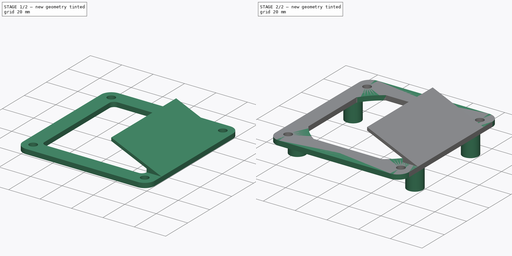
[diagram: build sequence overview — one tinted view per stage of 2, left to right]
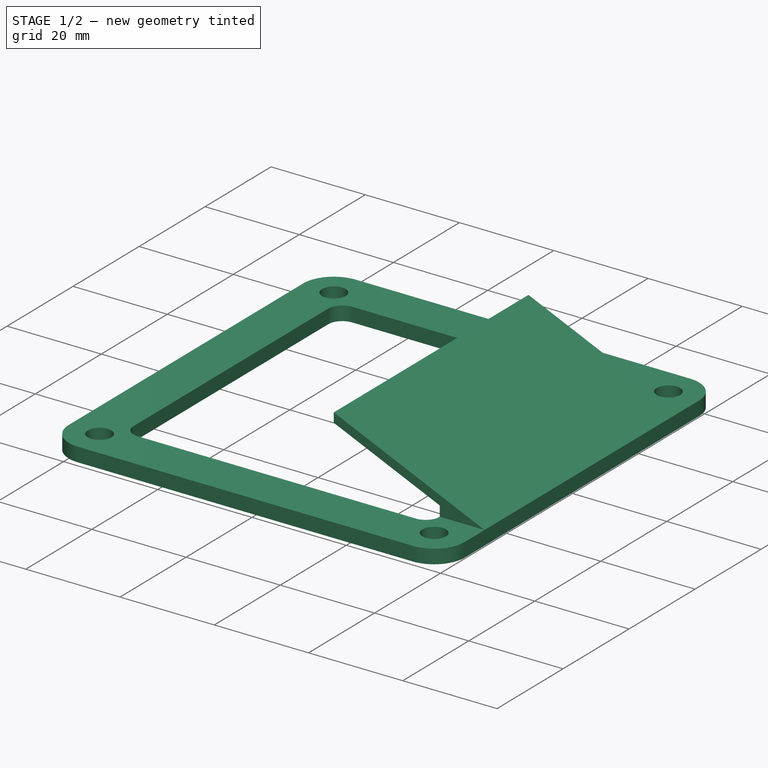
[diagram: stage 1 of 2 — iso view after this stage's code; geometry added in this stage tinted green]
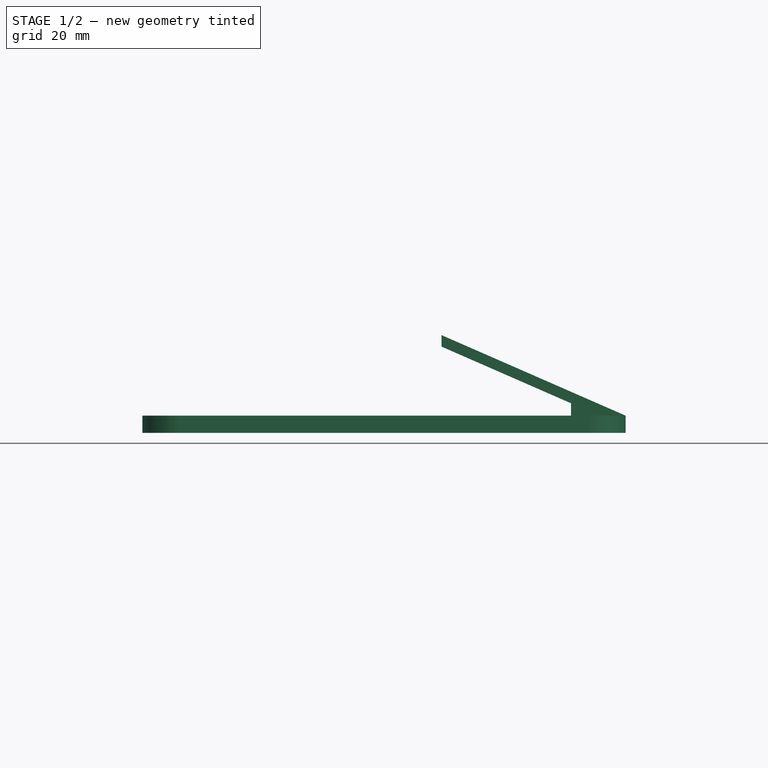
[diagram: stage 1 of 2 — front view after this stage's code; geometry added in this stage tinted green]
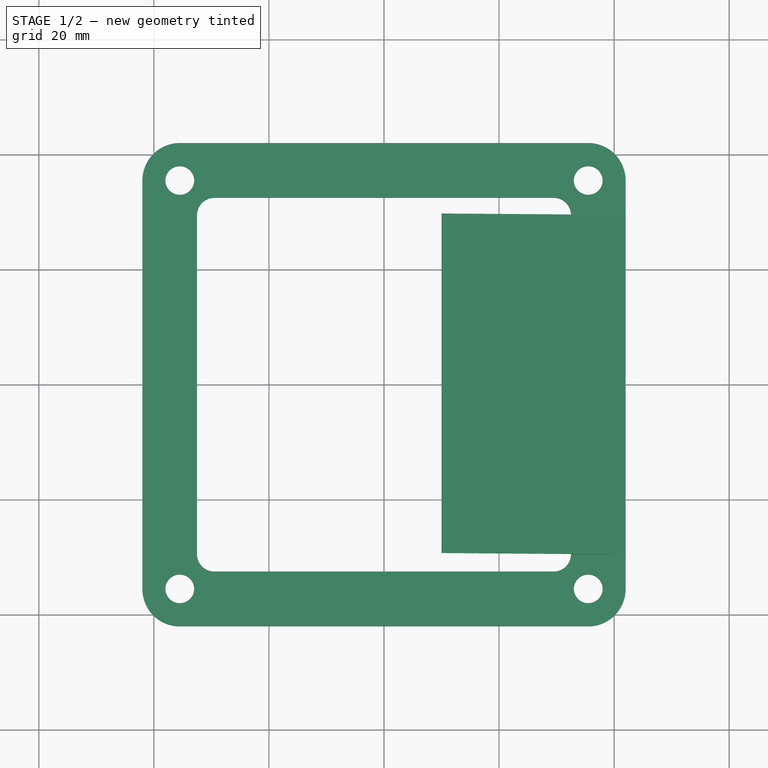
[diagram: stage 1 of 2 — top view after this stage's code; geometry added in this stage tinted green]
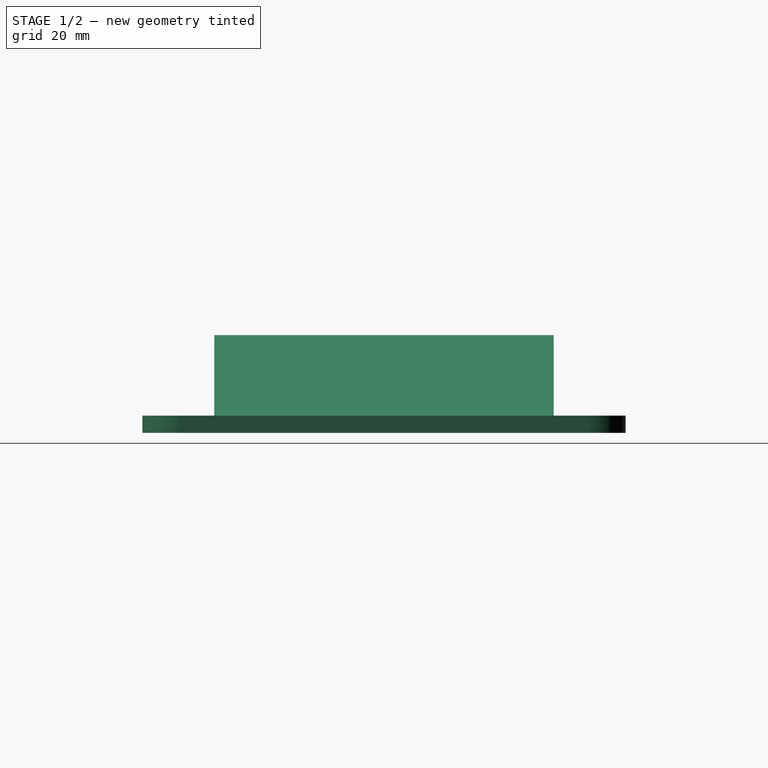
[diagram: stage 1 of 2 — right view after this stage's code; geometry added in this stage tinted green]
FCSTD DOCUMENT  (FreeCAD 1.0R39109 (Git))
Label: Fan8
License: All rights reserved
LicenseURL: http://en.wikipedia.org/wiki/All_rights_reserved
objects: Sketcher::SketchObject×4, PartDesign::Pad×4, PartDesign::Body×2
note: 22 computed .brp shape members not serialized (recipe doc carries the construction recipe); baked Part::Feature solids carry a one-line shape summary decoded from their .brp

FEATURE [PartDesign::Body] Body
  AllowCompound = false
  Group = -> [Sketch,Pad,Sketch001,Pad001]
  Origin = -> Origin
  Tip = -> Pad001
FEATURE [Sketcher::SketchObject] Sketch002
  ArcFitTolerance = 1e-06
  AttachmentSupport = -> [XZ_Plane001]
  FullyConstrained = true
  MakeInternals = false
  MapMode = 5
  Placement = pos=(0,0,0) rot=(1,0,0;1.5708rad)
  sketch-geometry (5):
    g0: LineSegment StartX=10 StartY=17 StartZ=0 EndX=42 EndY=3 EndZ=0
    g1: LineSegment StartX=10 StartY=15 StartZ=0 EndX=32.5 EndY=5.15625 EndZ=0
    g2: LineSegment StartX=10 StartY=17 StartZ=0 EndX=10 EndY=15 EndZ=0
    g3: LineSegment StartX=32.5 StartY=3 StartZ=0 EndX=42 EndY=3 EndZ=0
    g4: LineSegment StartX=32.5 StartY=5.15625 StartZ=0 EndX=32.5 EndY=3 EndZ=0
  constraints (15):
    c: Parallel(g0,g1)
    c: DistanceY(g1,g0) = 2
    c: DistanceY(g-1,g0) = 3
    c: DistanceY(g-1,g0) = 17
    c: DistanceX(g-1,g0) = 42
    c: Coincident(g2,g0)
    c: Coincident(g2,g1)
    c: Vertical(g2)
    c: Coincident(g3,g0)
    c: Horizontal(g3)
    c: Coincident(g4,g1)
    c: Vertical(g4)
    c: Coincident(g3,g4)
    c: DistanceX(g3,g3) = 9.5
    c: DistanceX(g0,g0) = 32
FEATURE [Sketcher::SketchObject] Sketch003
  ArcFitTolerance = 1e-06
  AttachmentSupport = -> [XY_Plane001]
  FullyConstrained = true
  MakeInternals = false
  MapMode = 5
  sketch-geometry (26):
    g0: LineSegment [constr] StartX=-35.5 StartY=35.5 StartZ=0 EndX=-35.5 EndY=-35.5 EndZ=0
    g1: LineSegment [constr] StartX=-35.5 StartY=-35.5 StartZ=0 EndX=35.5 EndY=-35.5 EndZ=0
    g2: LineSegment [constr] StartX=35.5 StartY=-35.5 StartZ=0 EndX=35.5 EndY=35.5 EndZ=0
    g3: LineSegment [constr] StartX=35.5 StartY=35.5 StartZ=0 EndX=-35.5 EndY=35.5 EndZ=0
    g4: Circle CenterX=-35.5 CenterY=35.5 CenterZ=0 NormalX=0 NormalY=0 NormalZ=1 AngleXU=0 Radius=2.5
    g5: Circle CenterX=35.5 CenterY=35.5 CenterZ=0 NormalX=0 NormalY=0 NormalZ=1 AngleXU=0 Radius=2.5
    g6: Circle CenterX=35.5 CenterY=-35.5 CenterZ=0 NormalX=0 NormalY=0 NormalZ=1 AngleXU=0 Radius=2.5
    g7: Circle CenterX=-35.5 CenterY=-35.5 CenterZ=0 NormalX=0 NormalY=0 NormalZ=1 AngleXU=0 Radius=2.5
    g8: LineSegment StartX=-42 StartY=35.5 StartZ=0 EndX=-42 EndY=-35.5 EndZ=0
    g9: LineSegment StartX=-35.5 StartY=-42 StartZ=0 EndX=35.5 EndY=-42 EndZ=0
    g10: LineSegment StartX=42 StartY=-35.5 StartZ=0 EndX=42 EndY=35.5 EndZ=0
    g11: LineSegment StartX=35.5 StartY=42 StartZ=0 EndX=-35.5 EndY=42 EndZ=0
    g12: ArcOfCircle CenterX=-35.5 CenterY=35.5 CenterZ=0 NormalX=0 NormalY=0 NormalZ=1 AngleXU=0 Radius=6.5 StartAngle=1.5708 EndAngle=3.14159
    g13: ArcOfCircle CenterX=35.5 CenterY=35.5 CenterZ=0 NormalX=0 NormalY=0 NormalZ=1 AngleXU=0 Radius=6.5 StartAngle=5e-16 EndAngle=1.5708
    g14: ArcOfCircle CenterX=35.5 CenterY=-35.5 CenterZ=0 NormalX=0 NormalY=0 NormalZ=1 AngleXU=0 Radius=6.5 StartAngle=4.71239 EndAngle=6.28319
    g15: ArcOfCircle CenterX=-35.5 CenterY=-35.5 CenterZ=0 NormalX=0 NormalY=0 NormalZ=1 AngleXU=0 Radius=6.5 StartAngle=3.14159 EndAngle=4.71239
    g16: LineSegment StartX=-32.5 StartY=29.5 StartZ=0 EndX=-32.5 EndY=-29.5 EndZ=0
    g17: LineSegment StartX=-29.5 StartY=-32.5 StartZ=0 EndX=29.5 EndY=-32.5 EndZ=0
    g18: LineSegment StartX=32.5 StartY=-29.5 StartZ=0 EndX=32.5 EndY=29.5 EndZ=0
    g19: LineSegment StartX=29.5 StartY=32.5 StartZ=0 EndX=-29.5 EndY=32.5 EndZ=0
    g20: ArcOfCircle CenterX=-29.5 CenterY=29.5 CenterZ=0 NormalX=0 NormalY=0 NormalZ=1 AngleXU=0 Radius=3 StartAngle=1.5708 EndAngle=3.14159
    g21: ArcOfCircle CenterX=-29.5 CenterY=-29.5 CenterZ=0 NormalX=0 NormalY=0 NormalZ=1 AngleXU=0 Radius=3 StartAngle=3.14159 EndAngle=4.71239
    g22: ArcOfCircle CenterX=29.5 CenterY=-29.5 CenterZ=0 NormalX=0 NormalY=0 NormalZ=1 AngleXU=0 Radius=3 StartAngle=4.71239 EndAngle=6.28319
    g23: ArcOfCircle CenterX=29.5 CenterY=29.5 CenterZ=0 NormalX=0 NormalY=0 NormalZ=1 AngleXU=0 Radius=3 StartAngle=7.69e-14 EndAngle=1.5708
    g24: GeomPoint [constr] X=-32.5 Y=32.5 Z=0
    g25: GeomPoint [constr] X=32.5 Y=-32.5 Z=0
  constraints (60):
    c: Coincident(g0,g1)
    c: Coincident(g1,g2)
    c: Coincident(g2,g3)
    c: Coincident(g3,g0)
    c: Vertical(g0)
    c: Vertical(g2)
    c: Horizontal(g1)
    c: Horizontal(g3)
    c: DistanceX(g3,g3) = 71
    c: DistanceY(g2,g2) = 71
    c: Symmetric(g2,g0,g-1)
    c: Coincident(g4,g0)
    c: Coincident(g5,g2)
    c: Coincident(g6,g1)
    c: Coincident(g7,g0)
    c: Equal(g7,g4)
    c: Equal(g4,g5)
    c: Equal(g5,g6)
    c: Radius(g5) = 2.5
    c: Vertical(g8)
    c: Vertical(g10)
    c: Horizontal(g9)
    c: Horizontal(g11)
    c: Coincident(g12,g0)
    c: Coincident(g13,g2)
    c: Coincident(g14,g1)
    c: Coincident(g15,g0)
    c: Tangent(g13,g11) = -1.5708
    c: Tangent(g13,g10) = -1.5708
    c: Tangent(g14,g10) = -1.5708
    c: Tangent(g12,g11) = -1.5708
    c: Tangent(g12,g8) = -1.5708
    c: Tangent(g14,g9) = -1.5708
    c: Tangent(g15,g9) = -1.5708
    c: Radius(g13) = 6.5
    c: Coincident(g8,g15)
    c: Tangent(g16,g20) = -1.5708
    c: Tangent(g16,g21) = -1.5708
    c: Tangent(g17,g21) = -1.5708
    c: Tangent(g17,g22) = -1.5708
    c: Tangent(g18,g22) = -1.5708
    c: Tangent(g18,g23) = -1.5708
    c: Tangent(g19,g23) = -1.5708
    c: Tangent(g19,g20) = -1.5708
    c: Vertical(g16)
    c: Vertical(g18)
    c: Horizontal(g17)
    c: Horizontal(g19)
    c: Equal(g20,g21)
    c: Equal(g21,g22)
    c: Equal(g22,g23)
    c: PointOnObject(g24,g16)
    c: PointOnObject(g24,g19)
    c: PointOnObject(g25,g17)
    c: PointOnObject(g25,g18)
    c: DistanceY(g19,g2) = 3
    c: DistanceY(g1,g17) = 3
    c: DistanceX(g18,g2) = 3
    c: DistanceX(g0,g16) = 3
    c: Radius(g23) = 3
FEATURE [PartDesign::Pad] Pad002
  Direction = (0,0,1)
  Length = 3
  Length2 = 10
  Profile = -> Sketch003
  ReferenceAxis = -> Sketch003 [N_Axis]
  Suppressed = false
  Type = 0
FEATURE [PartDesign::Pad] Pad003
  BaseFeature = -> Pad002
  Direction = (0,-1,2e-16)
  Length = 59
  Length2 = 10
  Midplane = true
  Profile = -> Sketch002
  ReferenceAxis = -> Sketch002 [N_Axis]
  Suppressed = false
  Type = 0
FEATURE [PartDesign::Body] Body001  label="Vent"
  AllowCompound = false
  Group = -> [Sketch002,Sketch003,Pad002,Pad003]
  Origin = -> Origin001
  Placement = pos=(0,0,3) rot=(0,0,1;0rad)
  Tip = -> Pad003
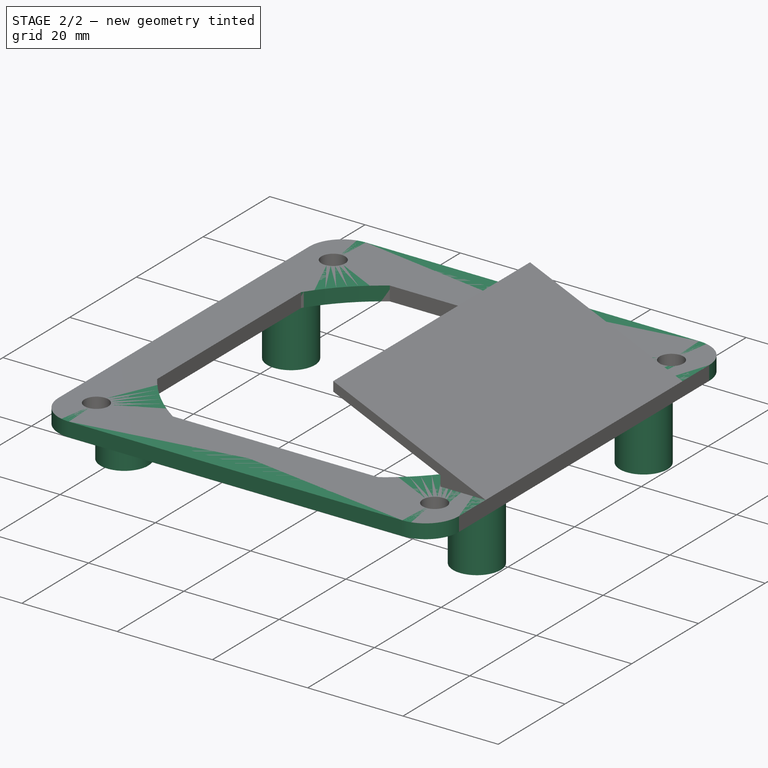
[diagram: stage 2 of 2 — iso view after this stage's code; geometry added in this stage tinted green]
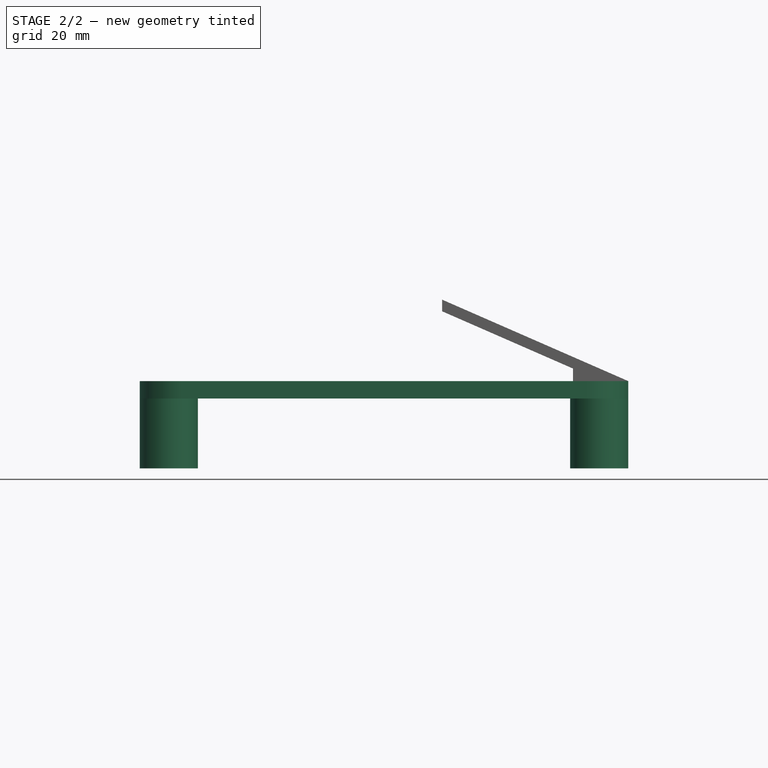
[diagram: stage 2 of 2 — front view after this stage's code; geometry added in this stage tinted green]
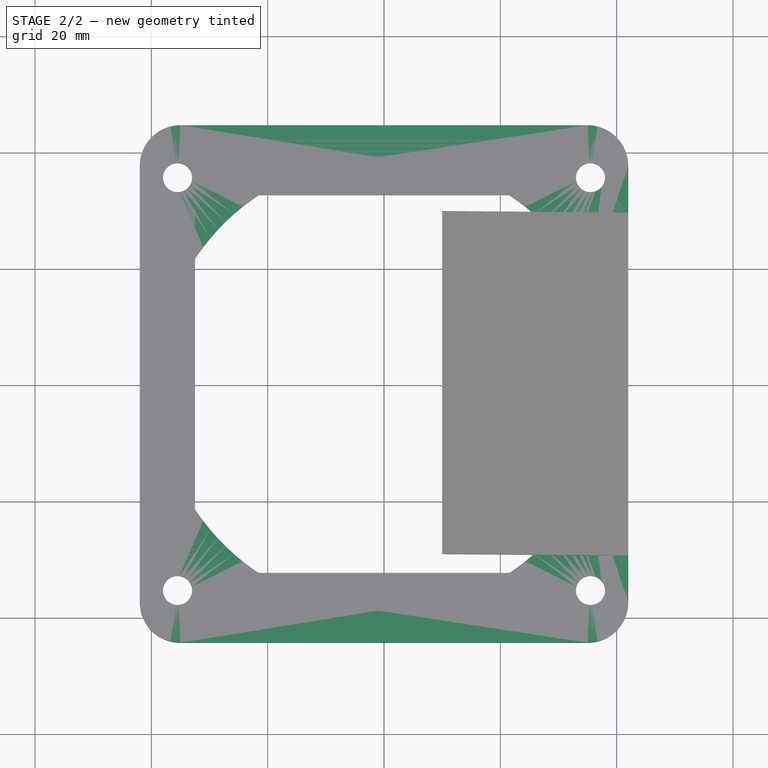
[diagram: stage 2 of 2 — top view after this stage's code; geometry added in this stage tinted green]
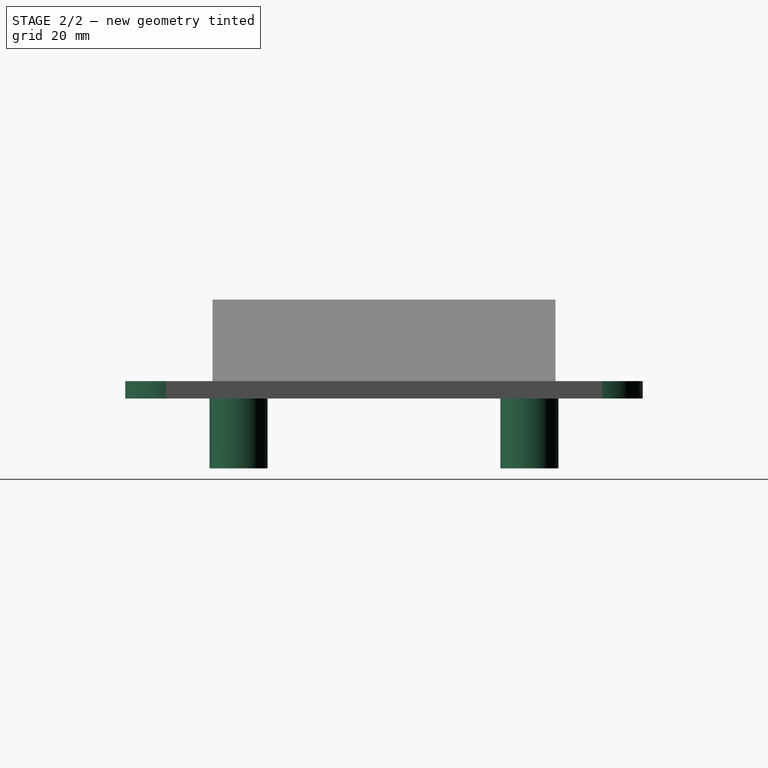
[diagram: stage 2 of 2 — right view after this stage's code; geometry added in this stage tinted green]
FEATURE [Sketcher::SketchObject] Sketch
  ArcFitTolerance = 1e-06
  AttachmentSupport = -> [XY_Plane]
  FullyConstrained = true
  MakeInternals = false
  MapMode = 5
  sketch-geometry (21):
    g0: LineSegment [constr] StartX=-35.5 StartY=35.5 StartZ=0 EndX=-35.5 EndY=-35.5 EndZ=0
    g1: LineSegment [constr] StartX=-35.5 StartY=-35.5 StartZ=0 EndX=35.5 EndY=-35.5 EndZ=0
    g2: LineSegment [constr] StartX=35.5 StartY=-35.5 StartZ=0 EndX=35.5 EndY=35.5 EndZ=0
    g3: LineSegment [constr] StartX=35.5 StartY=35.5 StartZ=0 EndX=-35.5 EndY=35.5 EndZ=0
    g4: Circle CenterX=-35.5 CenterY=35.5 CenterZ=0 NormalX=0 NormalY=0 NormalZ=1 AngleXU=0 Radius=2.5
    g5: Circle CenterX=35.5 CenterY=35.5 CenterZ=0 NormalX=0 NormalY=0 NormalZ=1 AngleXU=0 Radius=2.5
    g6: Circle CenterX=35.5 CenterY=-35.5 CenterZ=0 NormalX=0 NormalY=0 NormalZ=1 AngleXU=0 Radius=2.5
    g7: Circle CenterX=-35.5 CenterY=-35.5 CenterZ=0 NormalX=0 NormalY=0 NormalZ=1 AngleXU=0 Radius=2.5
    g8: LineSegment StartX=-42 StartY=37.5 StartZ=0 EndX=-42 EndY=-37.5 EndZ=0
    g9: LineSegment StartX=-35 StartY=-44.5 StartZ=0 EndX=35 EndY=-44.5 EndZ=0
    g10: LineSegment StartX=42 StartY=-37.5 StartZ=0 EndX=42 EndY=37.5 EndZ=0
    g11: LineSegment StartX=35 StartY=44.5 StartZ=0 EndX=-35 EndY=44.5 EndZ=0
    g12: ArcOfCircle CenterX=-35 CenterY=37.5 CenterZ=0 NormalX=0 NormalY=0 NormalZ=1 AngleXU=0 Radius=7 StartAngle=1.5708 EndAngle=3.14159
    g13: ArcOfCircle CenterX=35 CenterY=37.5 CenterZ=0 NormalX=0 NormalY=0 NormalZ=1 AngleXU=0 Radius=7 StartAngle=4e-16 EndAngle=1.5708
    g14: ArcOfCircle CenterX=35 CenterY=-37.5 CenterZ=0 NormalX=0 NormalY=0 NormalZ=1 AngleXU=0 Radius=7 StartAngle=4.71239 EndAngle=6.28319
    g15: ArcOfCircle CenterX=-35 CenterY=-37.5 CenterZ=0 NormalX=0 NormalY=0 NormalZ=1 AngleXU=0 Radius=7 StartAngle=3.14159 EndAngle=4.71239
    g16: Circle CenterX=0 CenterY=0 CenterZ=0 NormalX=0 NormalY=0 NormalZ=1 AngleXU=0 Radius=39
    g17: LineSegment [constr] StartX=-35 StartY=37.5 StartZ=0 EndX=-35 EndY=-37.5 EndZ=0
    g18: LineSegment [constr] StartX=-35 StartY=-37.5 StartZ=0 EndX=35 EndY=-37.5 EndZ=0
    g19: LineSegment [constr] StartX=35 StartY=-37.5 StartZ=0 EndX=35 EndY=37.5 EndZ=0
    g20: LineSegment [constr] StartX=35 StartY=37.5 StartZ=0 EndX=-35 EndY=37.5 EndZ=0
  constraints (49):
    c: Coincident(g0,g1)
    c: Coincident(g1,g2)
    c: Coincident(g2,g3)
    c: Coincident(g3,g0)
    c: Vertical(g0)
    c: Vertical(g2)
    c: Horizontal(g1)
    c: Horizontal(g3)
    c: DistanceX(g3,g3) = 71
    c: DistanceY(g2,g2) = 71
    c: Symmetric(g2,g0,g-1)
    c: Coincident(g4,g0)
    c: Coincident(g5,g2)
    c: Coincident(g6,g1)
    c: Coincident(g7,g0)
    c: Equal(g7,g4)
    c: Equal(g4,g5)
    c: Equal(g5,g6)
    c: Radius(g5) = 2.5
    c: Vertical(g8)
    c: Vertical(g10)
    c: Horizontal(g9)
    c: Horizontal(g11)
    c: Tangent(g13,g11) = -1.5708
    c: Tangent(g13,g10) = -1.5708
    c: Tangent(g14,g10) = -1.5708
    c: Tangent(g12,g11) = -1.5708
    c: Tangent(g12,g8) = -1.5708
    c: Tangent(g14,g9) = -1.5708
    c: Tangent(g15,g9) = -1.5708
    c: Radius(g13) = 7
    c: Radius(g16) = 39
    c: Coincident(g8,g15)
    c: Coincident(g16,g-1)
    c: Coincident(g17,g18)
    c: Coincident(g18,g19)
    c: Coincident(g19,g20)
    c: Coincident(g20,g17)
    c: Vertical(g17)
    c: Vertical(g19)
    c: Horizontal(g18)
    c: Horizontal(g20)
    c: Coincident(g17,g12)
    c: Coincident(g18,g14)
    c: Coincident(g13,g19)
    c: Coincident(g15,g17)
    c: Symmetric(g15,g13,g16)
    c: DistanceX(g20,g20) = 70
    c: DistanceY(g19,g19) = 75
FEATURE [PartDesign::Pad] Pad
  Direction = (0,0,1)
  Length = 3
  Length2 = 10
  Profile = -> Sketch
  ReferenceAxis = -> Sketch [N_Axis]
  Suppressed = false
  Type = 0
FEATURE [Sketcher::SketchObject] Sketch001
  ArcFitTolerance = 1e-06
  AttachmentSupport = -> [XY_Plane]
  FullyConstrained = true
  MakeInternals = false
  MapMode = 5
  sketch-geometry (8):
    g0: LineSegment [constr] StartX=-37 StartY=25 StartZ=0 EndX=-37 EndY=-25 EndZ=0
    g1: LineSegment [constr] StartX=-37 StartY=-25 StartZ=0 EndX=37 EndY=-25 EndZ=0
    g2: LineSegment [constr] StartX=37 StartY=-25 StartZ=0 EndX=37 EndY=25 EndZ=0
    g3: LineSegment [constr] StartX=37 StartY=25 StartZ=0 EndX=-37 EndY=25 EndZ=0
    g4: Circle CenterX=-37 CenterY=25 CenterZ=0 NormalX=0 NormalY=0 NormalZ=1 AngleXU=0 Radius=5
    g5: Circle CenterX=37 CenterY=25 CenterZ=0 NormalX=0 NormalY=0 NormalZ=1 AngleXU=0 Radius=5
    g6: Circle CenterX=37 CenterY=-25 CenterZ=0 NormalX=0 NormalY=0 NormalZ=1 AngleXU=0 Radius=5
    g7: Circle CenterX=-37 CenterY=-25 CenterZ=0 NormalX=0 NormalY=0 NormalZ=1 AngleXU=0 Radius=5
  constraints (19):
    c: Coincident(g0,g1)
    c: Coincident(g1,g2)
    c: Coincident(g2,g3)
    c: Coincident(g3,g0)
    c: Vertical(g0)
    c: Vertical(g2)
    c: Horizontal(g1)
    c: Horizontal(g3)
    c: DistanceX(g3,g3) = 74
    c: DistanceY(g2,g2) = 50
    c: Symmetric(g2,g0,g-1)
    c: Coincident(g4,g0)
    c: Coincident(g5,g2)
    c: Coincident(g6,g1)
    c: Coincident(g7,g0)
    c: Equal(g4,g5)
    c: Equal(g5,g6)
    c: Equal(g6,g7)
    c: Radius(g5) = 5
FEATURE [PartDesign::Pad] Pad001
  BaseFeature = -> Pad
  Direction = (0,0,1)
  Length = 12
  Length2 = 10
  Profile = -> Sketch001
  ReferenceAxis = -> Sketch001 [N_Axis]
  Reversed = true
  Suppressed = false
  Type = 0
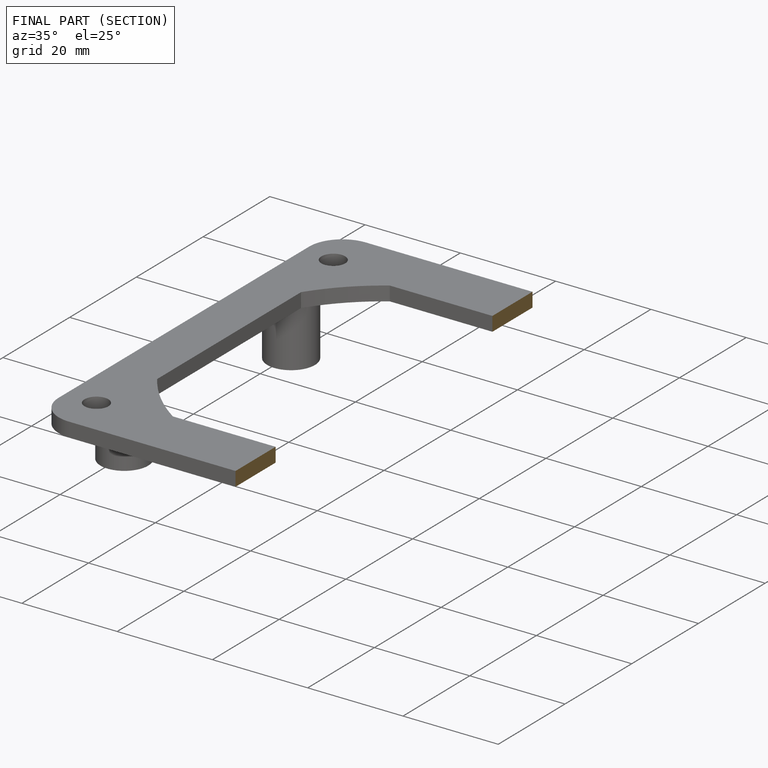
[diagram: finished part — half-section view (interior)]
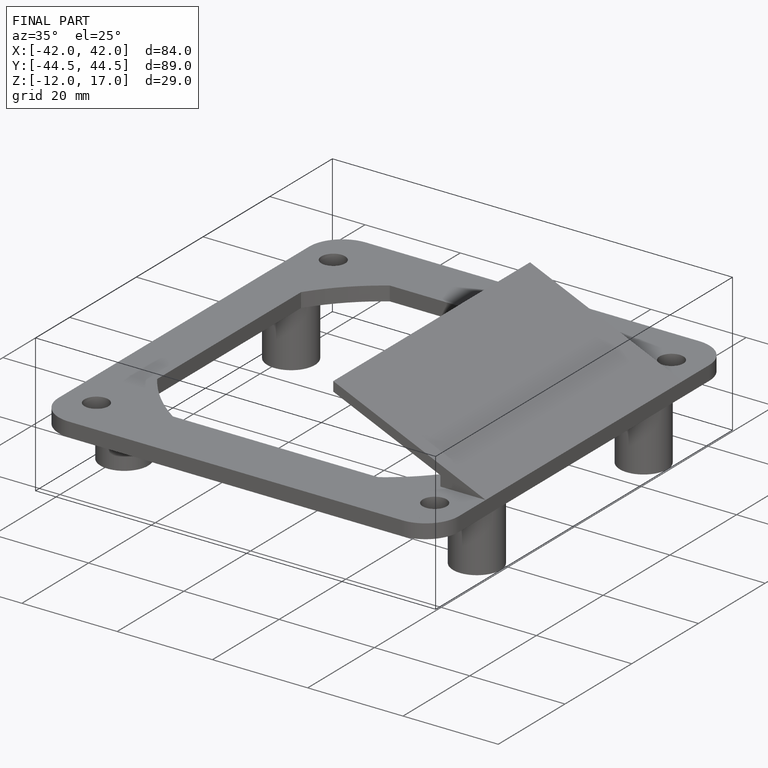
[diagram: finished part — iso view with bounding-box wireframe]
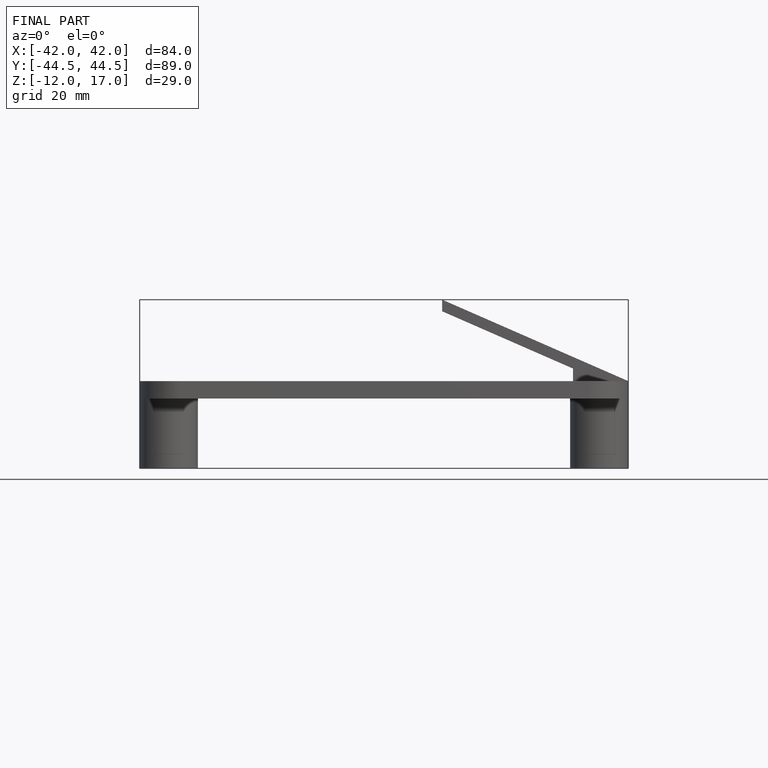
[diagram: finished part — front view with bounding-box wireframe]
